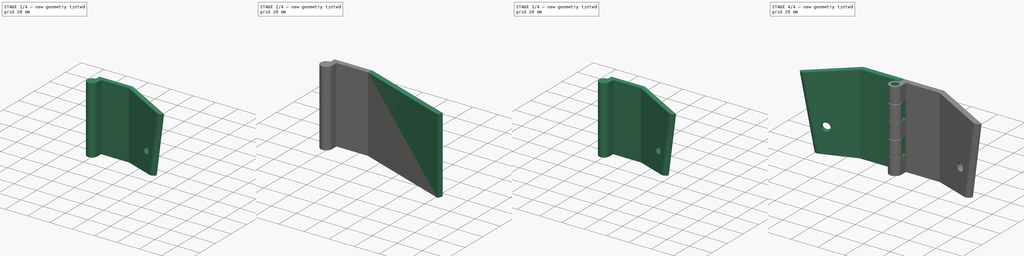
[diagram: build sequence overview — one tinted view per stage of 4, left to right]
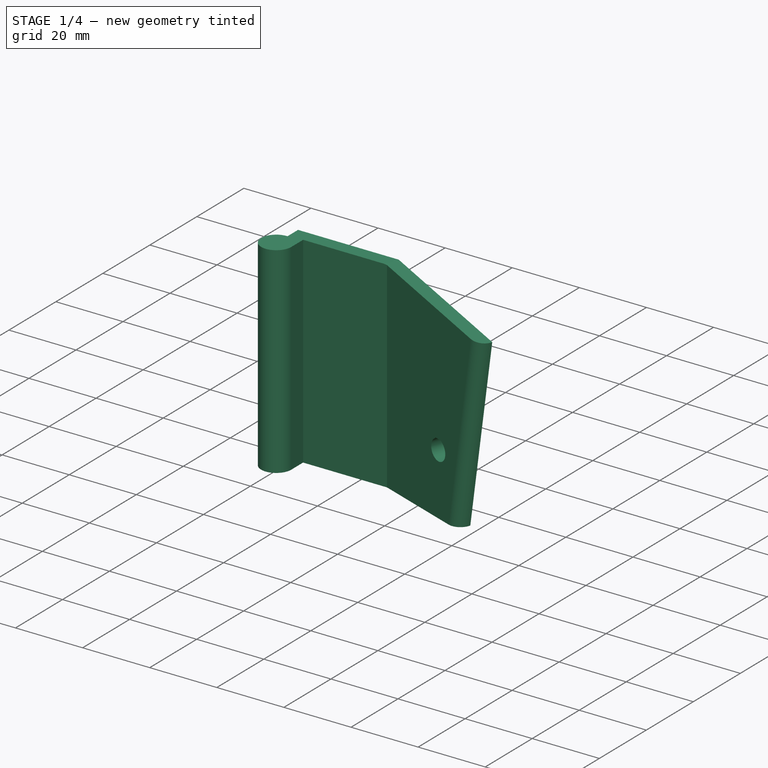
[diagram: stage 1 of 4 — iso view after this stage's code; geometry added in this stage tinted green]
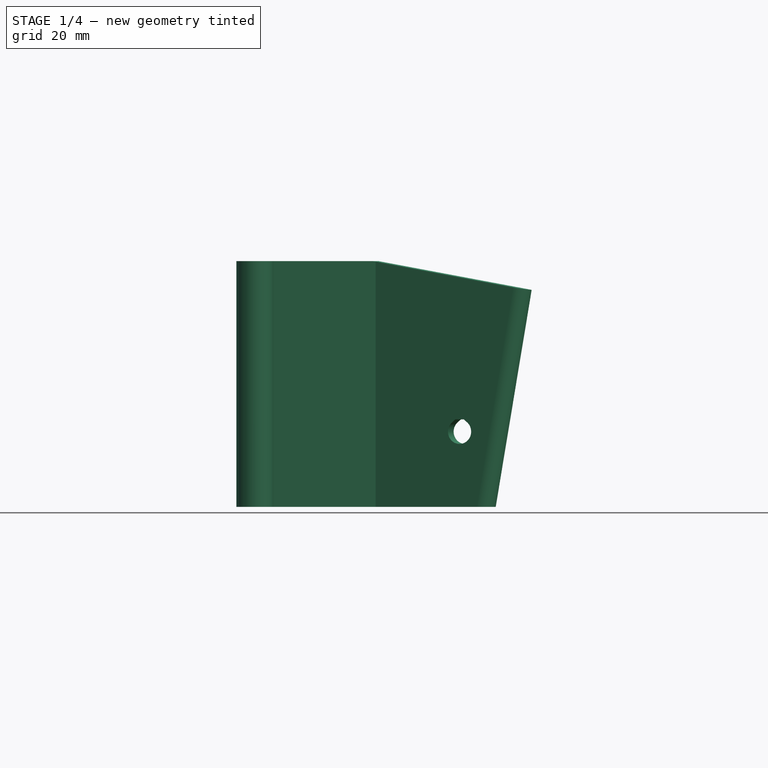
[diagram: stage 1 of 4 — front view after this stage's code; geometry added in this stage tinted green]
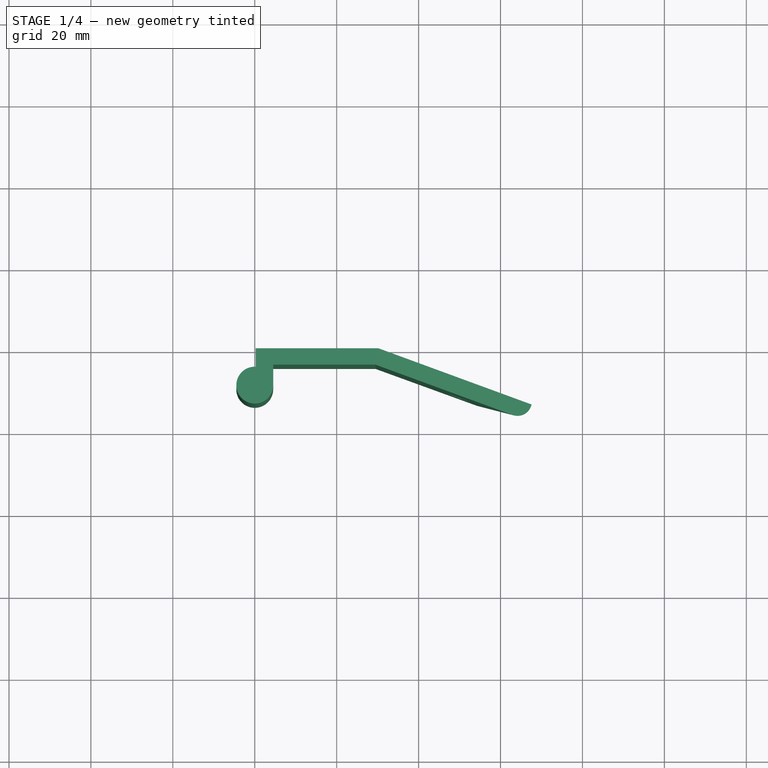
[diagram: stage 1 of 4 — top view after this stage's code; geometry added in this stage tinted green]
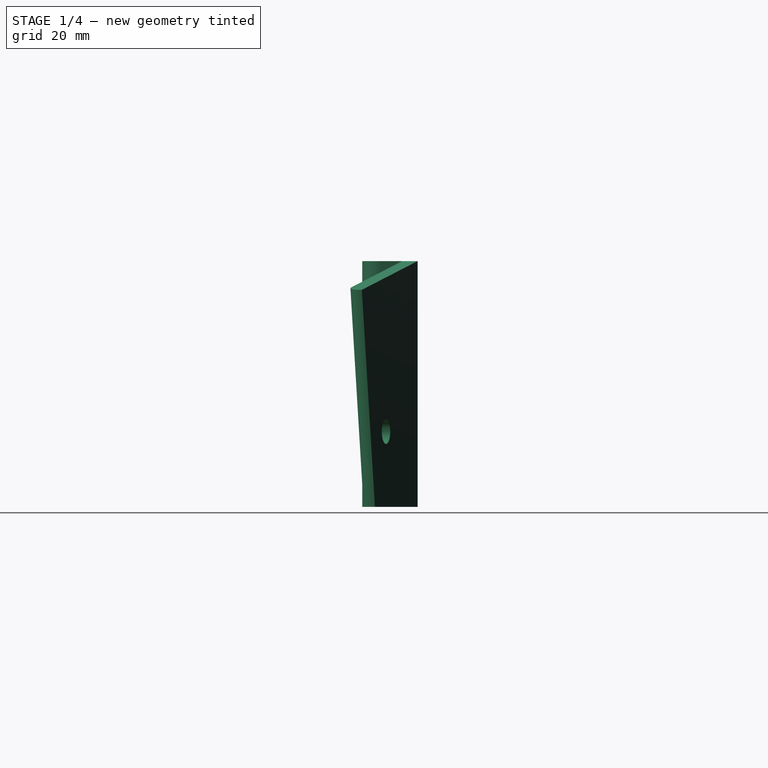
[diagram: stage 1 of 4 — right view after this stage's code; geometry added in this stage tinted green]
FCSTD DOCUMENT  (FreeCAD 0.20R29603 (Git))
Label: ergomin-hinge
License: All rights reserved
LicenseURL: http://en.wikipedia.org/wiki/All_rights_reserved
objects: Sketcher::SketchObject×11, PartDesign::Pocket×9, PartDesign::Pad×2, PartDesign::Fillet×2, PartDesign::Body×2, Part::Mirroring×1
note: 40 computed .brp shape members not serialized (recipe doc carries the construction recipe); baked Part::Feature solids carry a one-line shape summary decoded from their .brp

FEATURE [Sketcher::SketchObject] Sketch004
  FullyConstrained = true
  sketch-geometry (14):
    g0: LineSegment StartX=0.2 StartY=0 StartZ=0 EndX=30.2 EndY=0 EndZ=0
    g1: LineSegment StartX=30.2 StartY=0 StartZ=0 EndX=105.375 EndY=-27.3616 EndZ=0
    g2: LineSegment StartX=29.4947 StartY=-4 StartZ=0 EndX=4.5 EndY=-4 EndZ=0
    g3: LineSegment StartX=4.5 StartY=-4 StartZ=0 EndX=4.5 EndY=-9 EndZ=0
    g4: LineSegment StartX=4.5 StartY=-4 StartZ=0 EndX=0.2 EndY=-4 EndZ=0
    g5: ArcOfCircle CenterX=0 CenterY=-9 CenterZ=0 NormalX=0 NormalY=0 NormalZ=1 AngleXU=0 Radius=4.5 StartAngle=1.5708 EndAngle=6.28319
    g6: Circle CenterX=0 CenterY=-9 CenterZ=0 NormalX=0 NormalY=0 NormalZ=1 AngleXU=0 Radius=2.5
    g7: LineSegment StartX=4.5 StartY=-9 StartZ=0 EndX=2.5 EndY=-9 EndZ=0
    g8: LineSegment StartX=29.4947 StartY=-4 StartZ=0 EndX=104.007 EndY=-31.1204 EndZ=0
    g9: LineSegment StartX=29.4947 StartY=-4 StartZ=0 EndX=29.4947 EndY=0 EndZ=0
    g10: LineSegment StartX=29.4947 StartY=-4 StartZ=0 EndX=30.8628 EndY=-0.24123 EndZ=0
    g11: LineSegment StartX=0.2 StartY=0 StartZ=0 EndX=0.2 EndY=-4.5 EndZ=0
    g12: LineSegment StartX=0.2 StartY=-4.5 StartZ=0 EndX=0 EndY=-4.5 EndZ=0
    g13: LineSegment StartX=105.375 StartY=-27.3616 StartZ=0 EndX=104.007 EndY=-31.1204 EndZ=0
  constraints (40):
    c: PointOnObject(g0,g-1)
    c: Coincident(g1,g0)
    c: Horizontal(g2)
    c: Coincident(g2,g3)
    c: Vertical(g3)
    c: PointOnObject(g5,g-2)
    c: Angle(g0,g1) = 2.79253
    c: Distance(g1) = 80
    c: Distance(g0) = 30
    c: Coincident(g4,g2)
    c: Horizontal(g4)
    c: PointOnObject(g5,g-2)
    c: Tangent(g5,g3) = 1.5708
    c: Coincident(g6,g5)
    c: Diameter(g6) = 5  'bolt_diameter'
    c: Coincident(g7,g3)
    c: PointOnObject(g7,g6)
    c: Horizontal(g7)
    c: Distance(g7) = 2
    c: Coincident(g8,g2)
    c: Parallel(g8,g1)
    c: Coincident(g9,g2)
    c: PointOnObject(g9,g0)
    c: Vertical(g9)
    c: Coincident(g10,g2)
    c: PointOnObject(g10,g1)
    c: Perpendicular(g1,g10)
    c: Equal(g10,g9)
    c: Distance(g9) = 4
    c: Coincident(g11,g0)
    c: Vertical(g11)
    c: Coincident(g12,g11)
    c: Tangent(g12,g5) = -1.5708
    c: Horizontal(g0)
    c: Distance(g12) = 0.2
    c: PointOnObject(g4,g11)
    c: Coincident(g13,g1)
    c: Coincident(g13,g8)
    c: Perpendicular(g1,g13)
    c: Distance(g11,g4) = 0.5
FEATURE [PartDesign::Pad] Pad001
  Direction = (0,0,1)
  Length = 60
  Length2 = 10
  Profile = -> Sketch004
  ReferenceAxis = -> Sketch004 [N_Axis]
  Type = 0
FEATURE [Sketcher::SketchObject] Sketch005
  ExternalGeometry = -> [Pad001]
  FullyConstrained = true
  MapMode = 5
  Placement = pos=(3.53273,9.70609,0) rot=(0.123724,0.701674,0.701674;2.8954rad)
  Support = -> [Pad001]
  sketch-geometry (8):
    g0: LineSegment StartX=-28.3787 StartY=-3e-16 StartZ=0 EndX=-32.199 EndY=21.6658 EndZ=0
    g1: LineSegment StartX=-32.199 StartY=21.6658 StartZ=0 EndX=-50.9103 EndY=18.3665 EndZ=0
    g2: ArcOfCircle CenterX=-50.9103 CenterY=18.3665 CenterZ=0 NormalX=0 NormalY=0 NormalZ=1 AngleXU=0 Radius=3 StartAngle=2.26893 EndAngle=7.15585
    g3: LineSegment StartX=-52.8387 StartY=20.6646 StartZ=0 EndX=-52.0022 EndY=21.3665 EndZ=0
    g4: LineSegment StartX=-52.0022 StartY=21.3665 StartZ=0 EndX=-49.8184 EndY=21.3665 EndZ=0
    g5: LineSegment StartX=-49.8184 StartY=21.3665 StartZ=0 EndX=-48.982 EndY=20.6646 EndZ=0
    g6: LineSegment StartX=-50.9103 StartY=21.3665 StartZ=0 EndX=-50.9103 EndY=18.3665 EndZ=0
    g7: LineSegment StartX=-48.982 StartY=20.6646 StartZ=0 EndX=-50.9103 EndY=18.3665 EndZ=0
  constraints (21):
    c: Coincident(g0,g-3)
    c: Coincident(g1,g0)
    c: Coincident(g2,g1)
    c: Coincident(g4,g3)
    c: Horizontal(g4)
    c: Coincident(g5,g4)
    c: Tangent(g5,g2) = 1.5708
    c: Tangent(g3,g2) = 1.5708
    c: PointOnObject(g6,g4)
    c: Coincident(g6,g2)
    c: Vertical(g6)
    c: Coincident(g7,g2)
    c: Coincident(g7,g2)
    c: Equal(g7,g6)
    c: Equal(g5,g3)
    c: Radius(g2) = 3
    c: Perpendicular(g1,g0)
    c: Angle(g-3,g0) = 0.174533
    c: Distance(g0) = 22
    c: Distance(g1) = 19
    c: Angle(g4,g5) = 2.44346
FEATURE [PartDesign::Pocket] Pocket003
  BaseFeature = -> Pad001
  Direction = (-0.34202,-0.939693,1e-16)
  Length = 5
  Length2 = 5
  Profile = -> Sketch005
  ReferenceAxis = -> Sketch005 [N_Axis]
  Type = 1
FEATURE [Sketcher::SketchObject] Sketch006
  ExternalGeometry = -> [Pocket003]
  FullyConstrained = true
  MapMode = 5
  Placement = pos=(3.53273,9.70609,0) rot=(0.123724,0.701674,0.701674;2.8954rad)
  Support = -> [Pocket003]
  sketch-geometry (6):
    g0: LineSegment StartX=-28.3787 StartY=60 StartZ=0 EndX=-68.1836 EndY=52.9813 EndZ=0
    g1: LineSegment StartX=-68.1836 StartY=52.9813 StartZ=0 EndX=-58.8415 EndY=0 EndZ=0
    g2: LineSegment StartX=-58.8415 StartY=0 StartZ=0 EndX=-108.379 EndY=-1.3e-15 EndZ=0
    g3: LineSegment StartX=-108.379 StartY=-1.3e-15 StartZ=0 EndX=-108.379 EndY=60 EndZ=0
    g4: LineSegment StartX=-108.379 StartY=60 StartZ=0 EndX=-28.3787 EndY=60 EndZ=0
    g5: LineSegment StartX=-28.3787 StartY=-3e-16 StartZ=0 EndX=-38.6393 EndY=58.1908 EndZ=0
  constraints (15):
    c: Coincident(g-3,g0)
    c: Coincident(g0,g1)
    c: PointOnObject(g1,g-1)
    c: Coincident(g1,g2)
    c: Coincident(g2,g-4)
    c: Coincident(g2,g3)
    c: Coincident(g3,g-4)
    c: Coincident(g3,g4)
    c: Coincident(g4,g0)
    c: Perpendicular(g0,g1)
    c: Coincident(g5,g-3)
    c: PointOnObject(g5,g0)
    c: Perpendicular(g0,g5)
    c: Distance(g5,g0) = 30
    c: Angle(g4,g0) = 0.174533
FEATURE [PartDesign::Pocket] Pocket004
  BaseFeature = -> Pocket003
  Direction = (-0.34202,-0.939693,1e-16)
  Length = 5
  Length2 = 5
  Profile = -> Sketch006
  ReferenceAxis = -> Sketch006 [N_Axis]
  Type = 1
FEATURE [PartDesign::Fillet] Fillet001
  Base = -> Pocket004 [Edge28]
  BaseFeature = -> Pocket004
  Radius = 3.5
  SupportTransform = false
  UseAllEdges = false
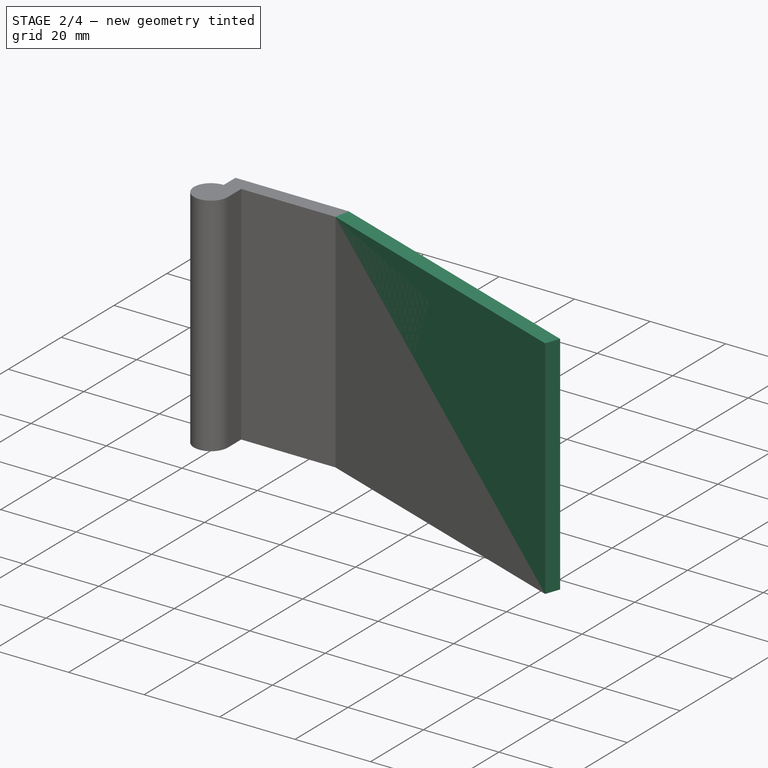
[diagram: stage 2 of 4 — iso view after this stage's code; geometry added in this stage tinted green]
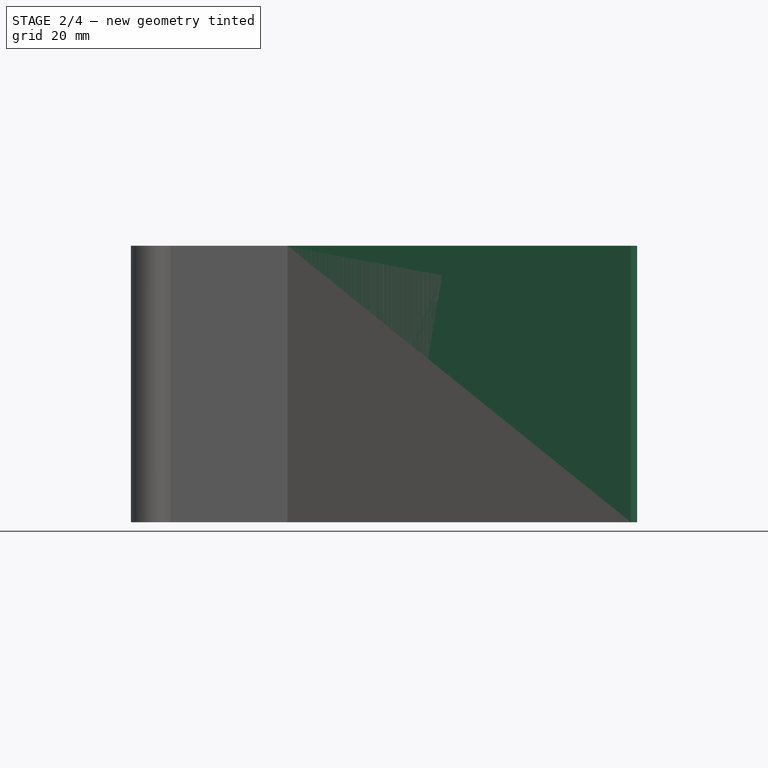
[diagram: stage 2 of 4 — front view after this stage's code; geometry added in this stage tinted green]
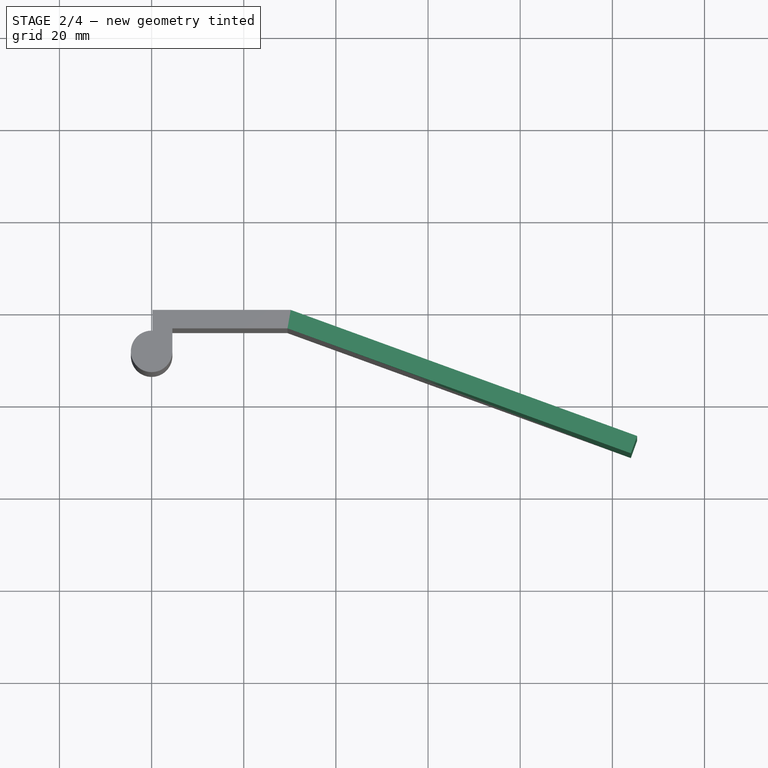
[diagram: stage 2 of 4 — top view after this stage's code; geometry added in this stage tinted green]
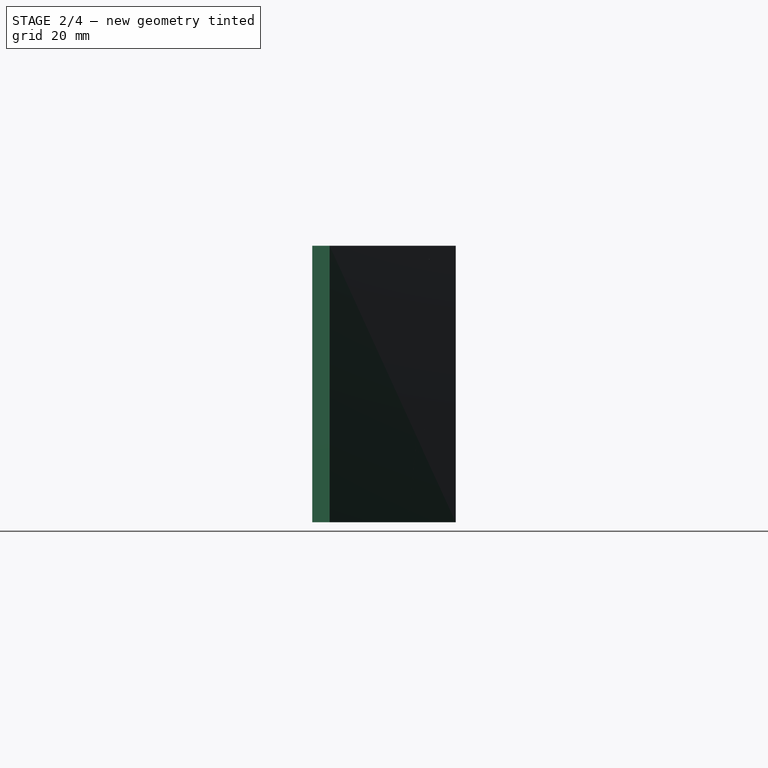
[diagram: stage 2 of 4 — right view after this stage's code; geometry added in this stage tinted green]
FEATURE [Sketcher::SketchObject] Sketch
  FullyConstrained = true
  sketch-geometry (14):
    g0: LineSegment StartX=0.2 StartY=0 StartZ=0 EndX=30.2 EndY=0 EndZ=0
    g1: LineSegment StartX=30.2 StartY=0 StartZ=0 EndX=105.375 EndY=-27.3616 EndZ=0
    g2: LineSegment StartX=29.4947 StartY=-4 StartZ=0 EndX=4.5 EndY=-4 EndZ=0
    g3: LineSegment StartX=4.5 StartY=-4 StartZ=0 EndX=4.5 EndY=-9 EndZ=0
    g4: LineSegment StartX=4.5 StartY=-4 StartZ=0 EndX=0.2 EndY=-4 EndZ=0
    g5: ArcOfCircle CenterX=0 CenterY=-9 CenterZ=0 NormalX=0 NormalY=0 NormalZ=1 AngleXU=0 Radius=4.5 StartAngle=1.5708 EndAngle=6.28319
    g6: Circle CenterX=0 CenterY=-9 CenterZ=0 NormalX=0 NormalY=0 NormalZ=1 AngleXU=0 Radius=2.5
    g7: LineSegment StartX=4.5 StartY=-9 StartZ=0 EndX=2.5 EndY=-9 EndZ=0
    g8: LineSegment StartX=29.4947 StartY=-4 StartZ=0 EndX=104.007 EndY=-31.1204 EndZ=0
    g9: LineSegment StartX=29.4947 StartY=-4 StartZ=0 EndX=29.4947 EndY=0 EndZ=0
    g10: LineSegment StartX=29.4947 StartY=-4 StartZ=0 EndX=30.8628 EndY=-0.24123 EndZ=0
    g11: LineSegment StartX=0.2 StartY=0 StartZ=0 EndX=0.2 EndY=-4.5 EndZ=0
    g12: LineSegment StartX=0.2 StartY=-4.5 StartZ=0 EndX=0 EndY=-4.5 EndZ=0
    g13: LineSegment StartX=105.375 StartY=-27.3616 StartZ=0 EndX=104.007 EndY=-31.1204 EndZ=0
  constraints (40):
    c: PointOnObject(g0,g-1)
    c: Coincident(g1,g0)
    c: Horizontal(g2)
    c: Coincident(g2,g3)
    c: Vertical(g3)
    c: PointOnObject(g5,g-2)
    c: Angle(g0,g1) = 2.79253
    c: Distance(g1) = 80
    c: Distance(g0) = 30
    c: Coincident(g4,g2)
    c: Horizontal(g4)
    c: PointOnObject(g5,g-2)
    c: Tangent(g5,g3) = 1.5708
    c: Coincident(g6,g5)
    c: Diameter(g6) = 5  'bolt_diameter'
    c: Coincident(g7,g3)
    c: PointOnObject(g7,g6)
    c: Horizontal(g7)
    c: Distance(g7) = 2
    c: Coincident(g8,g2)
    c: Parallel(g8,g1)
    c: Coincident(g9,g2)
    c: PointOnObject(g9,g0)
    c: Vertical(g9)
    c: Coincident(g10,g2)
    c: PointOnObject(g10,g1)
    c: Perpendicular(g1,g10)
    c: Equal(g10,g9)
    c: Distance(g9) = 4
    c: Coincident(g11,g0)
    c: Vertical(g11)
    c: Coincident(g12,g11)
    c: Tangent(g12,g5) = -1.5708
    c: Horizontal(g0)
    c: Distance(g12) = 0.2
    c: PointOnObject(g4,g11)
    c: Coincident(g13,g1)
    c: Coincident(g13,g8)
    c: Perpendicular(g1,g13)
    c: Distance(g11,g4) = 0.5
FEATURE [PartDesign::Pad] Pad
  Direction = (0,0,1)
  Length = 60
  Length2 = 10
  Profile = -> Sketch
  ReferenceAxis = -> Sketch [N_Axis]
  Type = 0
FEATURE [Sketcher::SketchObject] Sketch007
  ExternalGeometry = -> [Fillet001]
  FullyConstrained = true
  MapMode = 5
  Placement = pos=(0,0,60) rot=(0,0,1;0rad)
  Support = -> [Fillet001]
  sketch-geometry (1):
    g0: Circle CenterX=0 CenterY=-9 CenterZ=0 NormalX=0 NormalY=0 NormalZ=1 AngleXU=0 Radius=2.5
  constraints (2):
    c: Coincident(g0,g-3)
    c: Diameter(g0) = 5
FEATURE [PartDesign::Pocket] Pocket005
  BaseFeature = -> Fillet001
  Direction = (0,0,-1)
  Length = 5
  Length2 = 5
  Profile = -> Sketch007
  ReferenceAxis = -> Sketch007 [N_Axis]
  Type = 1
FEATURE [PartDesign::Body] Body
  Group = -> [Sketch,Pad,Sketch001,Pocket,Sketch002,Pocket001,Fillet,Sketch003,Pocket002,Sketch008,Pocket006,Sketch009,Pocket007]
  Origin = -> Origin
  Tip = -> Pocket007
FEATURE [Sketcher::SketchObject] Sketch010
  ExternalGeometry = -> [Pocket005]
  FullyConstrained = false
  MapMode = 5
  Placement = pos=(4.5,0,0) rot=(0.57735,0.57735,0.57735;2.0944rad)
  Support = -> [Pocket005]
  sketch-geometry (22):
    g0: LineSegment StartX=-4 StartY=60 StartZ=0 EndX=-34 EndY=60 EndZ=0
    g1: LineSegment StartX=-34 StartY=60 StartZ=0 EndX=-34 EndY=0 EndZ=0
    g2: LineSegment StartX=-34 StartY=0 StartZ=0 EndX=-4 EndY=0 EndZ=0
    g3: LineSegment StartX=-4 StartY=0 StartZ=0 EndX=-4 EndY=12.2 EndZ=0
    g4: LineSegment StartX=-4 StartY=12.2 StartZ=0 EndX=-29 EndY=12.2 EndZ=0
    g5: LineSegment StartX=-29 StartY=12.2 StartZ=0 EndX=-29 EndY=23.8 EndZ=0
    g6: LineSegment StartX=-29 StartY=23.8 StartZ=0 EndX=-4 EndY=23.8 EndZ=0
    g7: LineSegment StartX=-4 StartY=23.8 StartZ=0 EndX=-4 EndY=36.2 EndZ=0
    g8: LineSegment StartX=-4 StartY=36.2 StartZ=0 EndX=-29 EndY=36.2 EndZ=0
    g9: LineSegment StartX=-29 StartY=36.2 StartZ=0 EndX=-29 EndY=47.8 EndZ=0
    g10: LineSegment StartX=-29 StartY=47.8 StartZ=0 EndX=-4 EndY=47.8 EndZ=0
    g11: LineSegment StartX=-4 StartY=47.8 StartZ=0 EndX=-4 EndY=60 EndZ=0
    g12: LineSegment StartX=-9 StartY=0 StartZ=0 EndX=-9 EndY=12 EndZ=0
    g13: LineSegment StartX=-9 StartY=12 StartZ=0 EndX=-9 EndY=24 EndZ=0
    g14: LineSegment StartX=-9 StartY=24 StartZ=0 EndX=-9 EndY=36 EndZ=0
    g15: LineSegment StartX=-9 StartY=36 StartZ=0 EndX=-9 EndY=48 EndZ=0
    g16: LineSegment StartX=-9 StartY=48 StartZ=0 EndX=-9 EndY=60 EndZ=0
    g17: LineSegment StartX=-9 StartY=48 StartZ=0 EndX=-4 EndY=47.8 EndZ=0
    g18: LineSegment StartX=-9 StartY=36 StartZ=0 EndX=-4 EndY=36.2 EndZ=0
    g19: LineSegment StartX=-9 StartY=24 StartZ=0 EndX=-4 EndY=23.8 EndZ=0
    g20: LineSegment StartX=-9 StartY=12 StartZ=0 EndX=-4 EndY=12.2 EndZ=0
    g21: LineSegment StartX=-29 StartY=36.2 StartZ=0 EndX=-29 EndY=23.8 EndZ=0
  constraints (58):
    c: Coincident(g-3,g0)
    c: Horizontal(g0)
    c: Coincident(g0,g1)
    c: PointOnObject(g1,g-1)
    c: Vertical(g1)
    c: Coincident(g1,g2)
    c: Coincident(g2,g-3)
    c: Coincident(g2,g3)
    c: PointOnObject(g3,g-3)
    c: Coincident(g3,g4)
    c: Horizontal(g4)
    c: Coincident(g4,g5)
    c: Vertical(g5)
    c: Coincident(g5,g6)
    c: PointOnObject(g6,g-3)
    c: Horizontal(g6)
    c: Coincident(g6,g7)
    c: PointOnObject(g7,g-3)
    c: Coincident(g7,g8)
    c: Horizontal(g8)
    c: Coincident(g8,g9)
    c: Vertical(g9)
    c: Coincident(g9,g10)
    c: PointOnObject(g10,g-3)
    c: Horizontal(g10)
    c: Coincident(g10,g11)
    c: Coincident(g11,g0)
    c: Distance(g0) = 30
    c: Distance(g9,g1) = 5
    c: Coincident(g-4,g12)
    c: PointOnObject(g12,g-4)
    c: Coincident(g12,g13)
    c: PointOnObject(g13,g-4)
    c: Coincident(g13,g14)
    c: PointOnObject(g14,g-4)
    c: Coincident(g14,g15)
    c: PointOnObject(g15,g-4)
    c: Coincident(g15,g16)
    c: Coincident(g16,g-4)
    c: Equal(g12,g13)
    c: Equal(g13,g14)
    c: Equal(g14,g15)
    c: Equal(g15,g16)
    c: Coincident(g17,g15)
    c: Coincident(g17,g10)
    c: Coincident(g18,g14)
    c: Coincident(g18,g7)
    c: Coincident(g19,g13)
    c: Coincident(g19,g6)
    c: Coincident(g20,g12)
    c: Coincident(g20,g3)
    c: Equal(g17,g18)
    c: Equal(g18,g19)
    c: Equal(g19,g20)
    c: Coincident(g21,g8)
    c: Coincident(g21,g5)
    c: Vertical(g21)
    c: Distance(g15,g10) = 0.2
FEATURE [PartDesign::Pocket] Pocket008
  BaseFeature = -> Pocket005
  Direction = (-1,0,0)
  Length = 5
  Length2 = 5
  Profile = -> Sketch010
  ReferenceAxis = -> Sketch010 [N_Axis]
  Type = 1
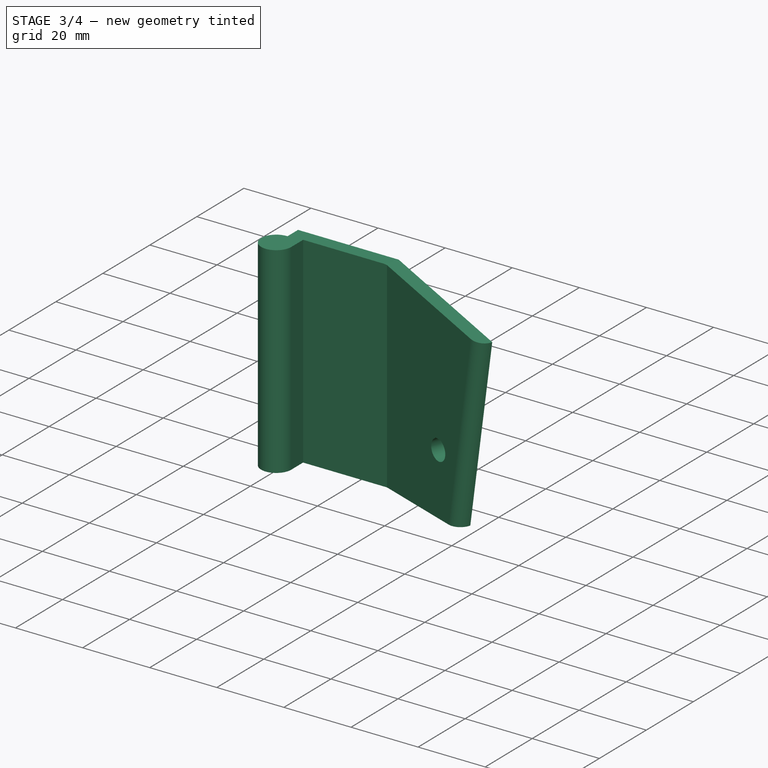
[diagram: stage 3 of 4 — iso view after this stage's code; geometry added in this stage tinted green]
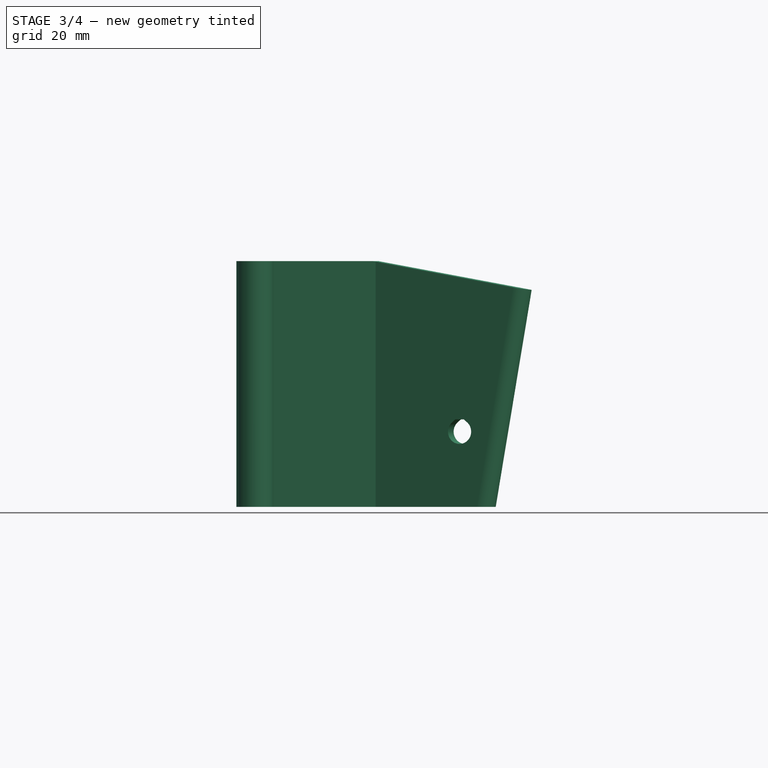
[diagram: stage 3 of 4 — front view after this stage's code; geometry added in this stage tinted green]
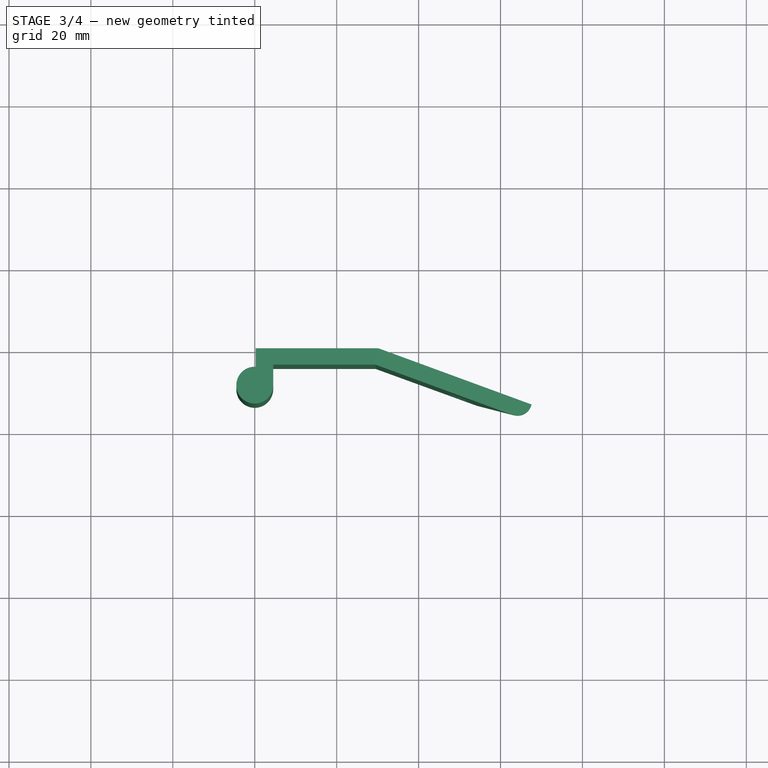
[diagram: stage 3 of 4 — top view after this stage's code; geometry added in this stage tinted green]
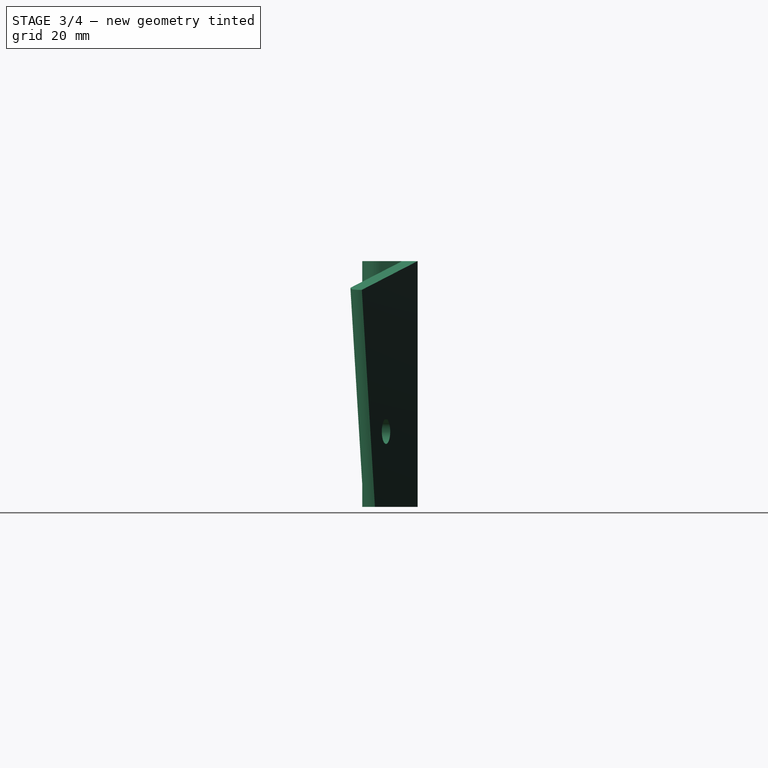
[diagram: stage 3 of 4 — right view after this stage's code; geometry added in this stage tinted green]
FEATURE [Sketcher::SketchObject] Sketch001
  ExternalGeometry = -> [Pad]
  FullyConstrained = true
  MapMode = 5
  Placement = pos=(3.53273,9.70609,0) rot=(0.123724,0.701674,0.701674;2.8954rad)
  Support = -> [Pad]
  sketch-geometry (8):
    g0: LineSegment StartX=-28.3787 StartY=-3e-16 StartZ=0 EndX=-32.199 EndY=21.6658 EndZ=0
    g1: LineSegment StartX=-32.199 StartY=21.6658 StartZ=0 EndX=-50.9103 EndY=18.3665 EndZ=0
    g2: ArcOfCircle CenterX=-50.9103 CenterY=18.3665 CenterZ=0 NormalX=0 NormalY=0 NormalZ=1 AngleXU=0 Radius=3 StartAngle=2.26893 EndAngle=7.15585
    g3: LineSegment StartX=-52.8387 StartY=20.6646 StartZ=0 EndX=-52.0022 EndY=21.3665 EndZ=0
    g4: LineSegment StartX=-52.0022 StartY=21.3665 StartZ=0 EndX=-49.8184 EndY=21.3665 EndZ=0
    g5: LineSegment StartX=-49.8184 StartY=21.3665 StartZ=0 EndX=-48.982 EndY=20.6646 EndZ=0
    g6: LineSegment StartX=-50.9103 StartY=21.3665 StartZ=0 EndX=-50.9103 EndY=18.3665 EndZ=0
    g7: LineSegment StartX=-48.982 StartY=20.6646 StartZ=0 EndX=-50.9103 EndY=18.3665 EndZ=0
  constraints (21):
    c: Coincident(g0,g-3)
    c: Coincident(g1,g0)
    c: Coincident(g2,g1)
    c: Coincident(g4,g3)
    c: Horizontal(g4)
    c: Coincident(g5,g4)
    c: Tangent(g5,g2) = 1.5708
    c: Tangent(g3,g2) = 1.5708
    c: PointOnObject(g6,g4)
    c: Coincident(g6,g2)
    c: Vertical(g6)
    c: Coincident(g7,g2)
    c: Coincident(g7,g2)
    c: Equal(g7,g6)
    c: Equal(g5,g3)
    c: Radius(g2) = 3
    c: Perpendicular(g1,g0)
    c: Angle(g-3,g0) = 0.174533
    c: Distance(g0) = 22
    c: Distance(g1) = 19
    c: Angle(g4,g5) = 2.44346
FEATURE [PartDesign::Pocket] Pocket
  BaseFeature = -> Pad
  Direction = (-0.34202,-0.939693,2e-16)
  Length = 5
  Length2 = 5
  Profile = -> Sketch001
  ReferenceAxis = -> Sketch001 [N_Axis]
  Type = 1
FEATURE [Sketcher::SketchObject] Sketch002
  ExternalGeometry = -> [Pocket]
  FullyConstrained = true
  MapMode = 5
  Placement = pos=(3.53273,9.70609,0) rot=(0.123724,0.701674,0.701674;2.8954rad)
  Support = -> [Pocket]
  sketch-geometry (6):
    g0: LineSegment StartX=-28.3787 StartY=60 StartZ=0 EndX=-68.1836 EndY=52.9813 EndZ=0
    g1: LineSegment StartX=-68.1836 StartY=52.9813 StartZ=0 EndX=-58.8415 EndY=0 EndZ=0
    g2: LineSegment StartX=-58.8415 StartY=0 StartZ=0 EndX=-108.379 EndY=-1.3e-15 EndZ=0
    g3: LineSegment StartX=-108.379 StartY=-1.3e-15 StartZ=0 EndX=-108.379 EndY=60 EndZ=0
    g4: LineSegment StartX=-108.379 StartY=60 StartZ=0 EndX=-28.3787 EndY=60 EndZ=0
    g5: LineSegment StartX=-28.3787 StartY=-3e-16 StartZ=0 EndX=-38.6393 EndY=58.1908 EndZ=0
  constraints (15):
    c: Coincident(g-3,g0)
    c: Coincident(g0,g1)
    c: PointOnObject(g1,g-1)
    c: Coincident(g1,g2)
    c: Coincident(g2,g-4)
    c: Coincident(g2,g3)
    c: Coincident(g3,g-4)
    c: Coincident(g3,g4)
    c: Coincident(g4,g0)
    c: Perpendicular(g0,g1)
    c: Coincident(g5,g-3)
    c: PointOnObject(g5,g0)
    c: Perpendicular(g0,g5)
    c: Distance(g5,g0) = 30
    c: Angle(g4,g0) = 0.174533
FEATURE [PartDesign::Pocket] Pocket001
  BaseFeature = -> Pocket
  Direction = (-0.34202,-0.939693,2e-16)
  Length = 5
  Length2 = 5
  Profile = -> Sketch002
  ReferenceAxis = -> Sketch002 [N_Axis]
  Type = 1
FEATURE [PartDesign::Fillet] Fillet
  Base = -> Pocket001 [Edge28]
  BaseFeature = -> Pocket001
  Radius = 3.5
  SupportTransform = false
  UseAllEdges = false
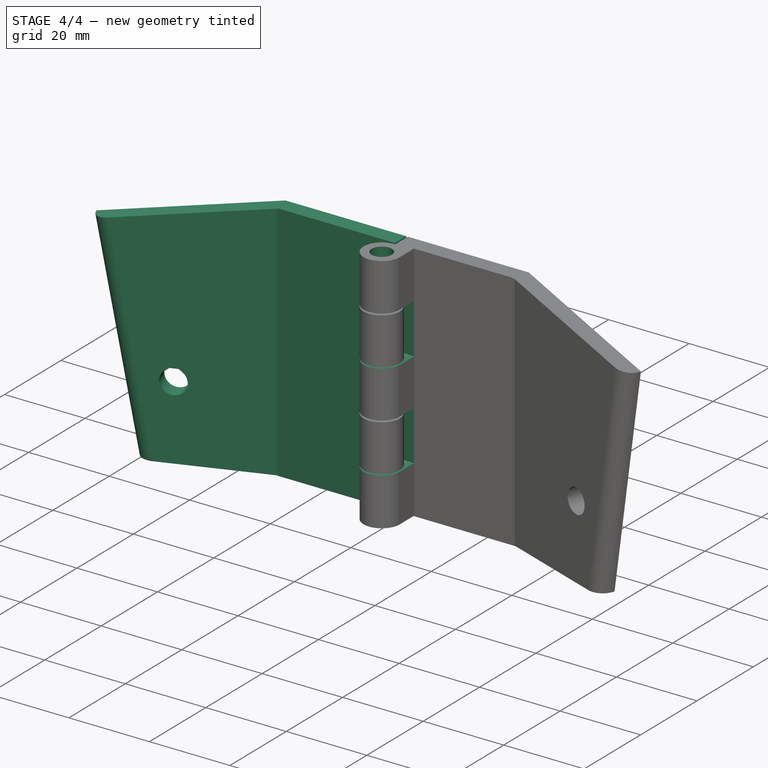
[diagram: stage 4 of 4 — iso view after this stage's code; geometry added in this stage tinted green]
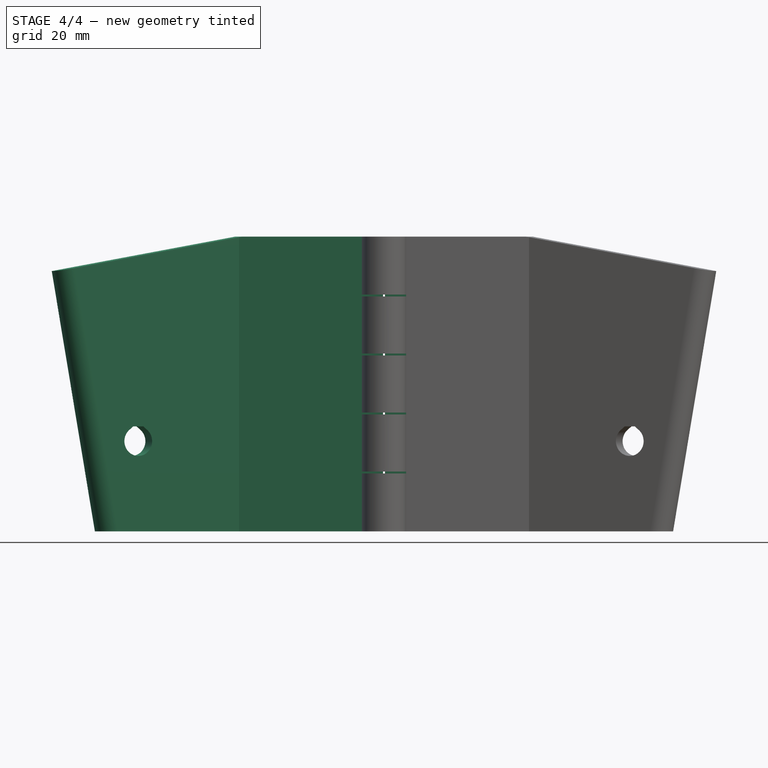
[diagram: stage 4 of 4 — front view after this stage's code; geometry added in this stage tinted green]
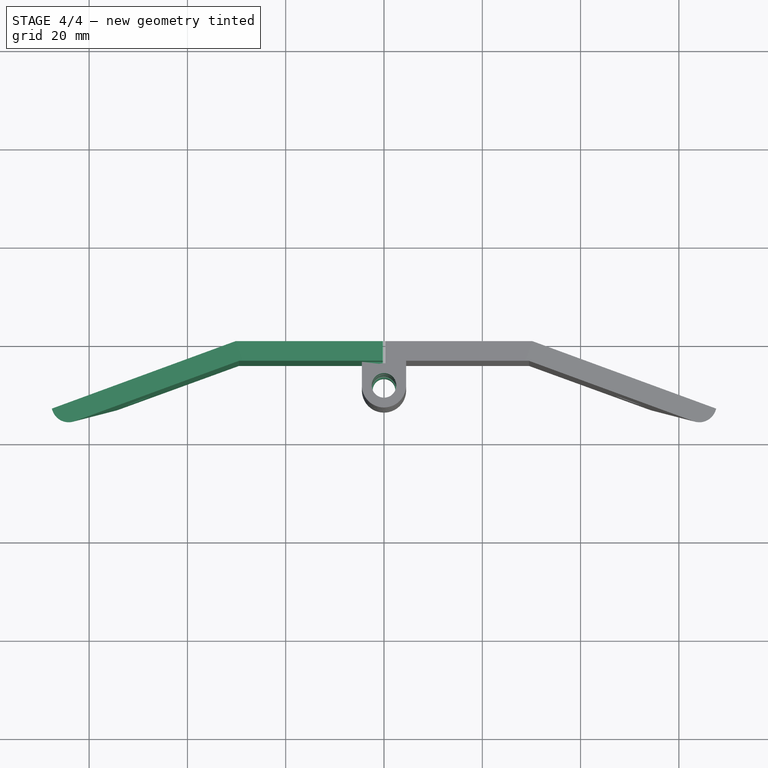
[diagram: stage 4 of 4 — top view after this stage's code; geometry added in this stage tinted green]
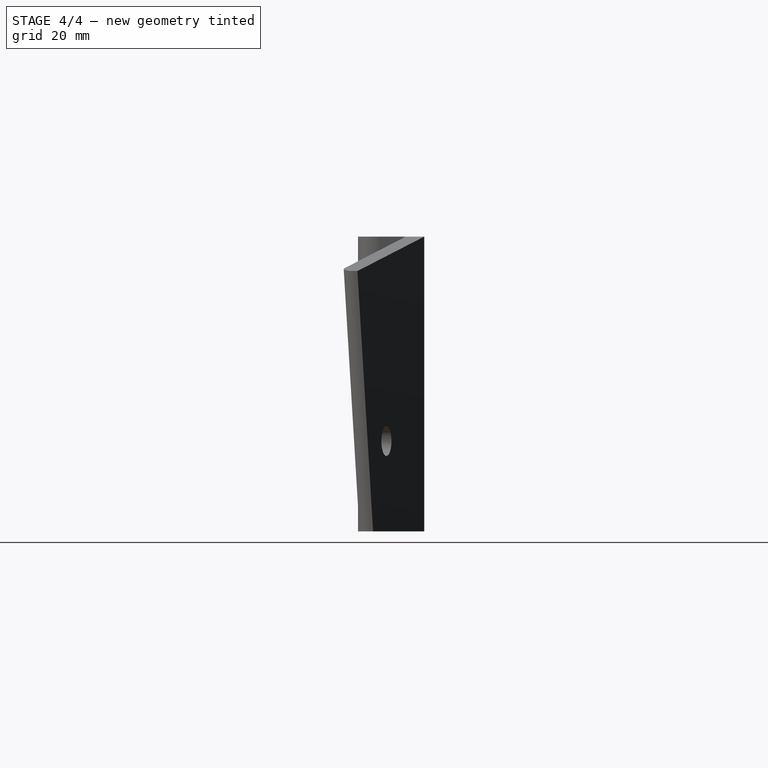
[diagram: stage 4 of 4 — right view after this stage's code; geometry added in this stage tinted green]
FEATURE [Sketcher::SketchObject] Sketch003
  ExternalGeometry = -> [Fillet]
  FullyConstrained = true
  MapMode = 5
  Placement = pos=(0,0,60) rot=(0,0,1;0rad)
  Support = -> [Fillet]
  sketch-geometry (1):
    g0: Circle CenterX=0 CenterY=-9 CenterZ=0 NormalX=0 NormalY=0 NormalZ=1 AngleXU=0 Radius=2.3
  constraints (2):
    c: Coincident(g0,g-3)
    c: Diameter(g0) = 4.6
FEATURE [PartDesign::Pocket] Pocket002
  BaseFeature = -> Fillet
  Direction = (0,0,-1)
  Length = 5
  Length2 = 5
  Profile = -> Sketch003
  ReferenceAxis = -> Sketch003 [N_Axis]
  Type = 1
FEATURE [Sketcher::SketchObject] Sketch008
  ExternalGeometry = -> [Pocket002]
  FullyConstrained = true
  MapMode = 5
  Placement = pos=(4.5,0,0) rot=(0.57735,0.57735,0.57735;2.0944rad)
  Support = -> [Pocket002]
  sketch-geometry (18):
    g0: LineSegment StartX=-34 StartY=48.2 StartZ=0 EndX=-4 EndY=48.2 EndZ=0
    g1: LineSegment StartX=-4 StartY=48.2 StartZ=0 EndX=-4 EndY=35.8 EndZ=0
    g2: LineSegment StartX=-4 StartY=35.8 StartZ=0 EndX=-29 EndY=35.8 EndZ=0
    g3: LineSegment StartX=-4 StartY=11.8 StartZ=0 EndX=-34 EndY=11.8 EndZ=0
    g4: LineSegment StartX=-29 StartY=24.2 StartZ=0 EndX=-4 EndY=24.2 EndZ=0
    g5: LineSegment StartX=-4 StartY=24.2 StartZ=0 EndX=-4 EndY=11.8 EndZ=0
    g6: LineSegment StartX=-4 StartY=11.8 StartZ=0 EndX=-4 EndY=0 EndZ=0
    g7: LineSegment StartX=-34 StartY=48.2 StartZ=0 EndX=-34 EndY=11.8 EndZ=0
    g8: LineSegment StartX=-9 StartY=60 StartZ=0 EndX=-9 EndY=48 EndZ=0
    g9: LineSegment StartX=-9 StartY=48 StartZ=0 EndX=-9 EndY=36 EndZ=0
    g10: LineSegment StartX=-9 StartY=36 StartZ=0 EndX=-9 EndY=24 EndZ=0
    g11: LineSegment StartX=-9 StartY=24 StartZ=0 EndX=-9 EndY=12 EndZ=0
    g12: LineSegment StartX=-9 StartY=12 StartZ=0 EndX=-9 EndY=0 EndZ=0
    g13: LineSegment StartX=-29 StartY=24.2 StartZ=0 EndX=-29 EndY=35.8 EndZ=0
    g14: LineSegment StartX=-9 StartY=48 StartZ=0 EndX=-4 EndY=48.2 EndZ=0
    g15: LineSegment StartX=-9 StartY=36 StartZ=0 EndX=-4 EndY=35.8 EndZ=0
    g16: LineSegment StartX=-9 StartY=24 StartZ=0 EndX=-4 EndY=24.2 EndZ=0
    g17: LineSegment StartX=-9 StartY=12 StartZ=0 EndX=-4 EndY=11.8 EndZ=0
  constraints (48):
    c: Horizontal(g0)
    c: Coincident(g0,g1)
    c: Coincident(g1,g2)
    c: Horizontal(g2)
    c: Horizontal(g4)
    c: Coincident(g4,g5)
    c: Coincident(g5,g3)
    c: Vertical(g5)
    c: Horizontal(g3)
    c: Vertical(g1)
    c: Equal(g5,g1)
    c: Coincident(g6,g3)
    c: Vertical(g6)
    c: Coincident(g7,g0)
    c: Coincident(g7,g3)
    c: Vertical(g7)
    c: Coincident(g-3,g6)
    c: Coincident(g-4,g8)
    c: Vertical(g8)
    c: Coincident(g8,g9)
    c: Vertical(g9)
    c: Coincident(g9,g10)
    c: Vertical(g10)
    c: Coincident(g10,g11)
    c: Vertical(g11)
    c: Coincident(g11,g12)
    c: Coincident(g12,g-3)
    c: Equal(g12,g11)
    c: Equal(g11,g10)
    c: Equal(g10,g9)
    c: Equal(g9,g8)
    c: Coincident(g13,g4)
    c: Coincident(g13,g2)
    c: Vertical(g13)
    c: Distance(g8,g0) = 0.2
    c: Coincident(g14,g8)
    c: Coincident(g14,g0)
    c: Coincident(g15,g9)
    c: Coincident(g15,g1)
    c: Coincident(g16,g10)
    c: Coincident(g16,g4)
    c: Coincident(g17,g11)
    c: Coincident(g17,g3)
    c: Equal(g17,g16)
    c: Equal(g16,g15)
    c: Equal(g15,g14)
    c: Distance(g0) = 30
    c: Distance(g2,g7) = 5
FEATURE [PartDesign::Pocket] Pocket006
  BaseFeature = -> Pocket002
  Direction = (-1,0,0)
  Length = 5
  Length2 = 5
  Profile = -> Sketch008
  ReferenceAxis = -> Sketch008 [N_Axis]
  Type = 1
FEATURE [Sketcher::SketchObject] Sketch009
  ExternalGeometry = -> [Pocket006]
  FullyConstrained = true
  MapMode = 5
  Placement = pos=(0,0,60) rot=(0,0,1;0rad)
  Support = -> [Pocket006]
  sketch-geometry (1):
    g0: Circle CenterX=0 CenterY=-9 CenterZ=0 NormalX=0 NormalY=0 NormalZ=1 AngleXU=0 Radius=2.5
  constraints (2):
    c: Coincident(g0,g-3)
    c: Diameter(g0) = 5
FEATURE [PartDesign::Pocket] Pocket007
  BaseFeature = -> Pocket006
  Direction = (0,0,-1)
  Length = 0
  Length2 = 5
  Profile = -> Sketch009
  ReferenceAxis = -> Sketch009 [N_Axis]
  Type = 3
  UpToFace = -> Pocket006 [Face24]
FEATURE [PartDesign::Body] Body001
  Group = -> [Sketch004,Pad001,Sketch005,Pocket003,Sketch006,Pocket004,Fillet001,Sketch007,Pocket005,Sketch010,Pocket008]
  Origin = -> Origin001
  Tip = -> Pocket008
FEATURE [Part::Mirroring] Part__Mirroring  label="Body001 (Mirror #1)"
  Base = (0,0,0)
  Normal = (1,0,0)
  Source = -> Body001
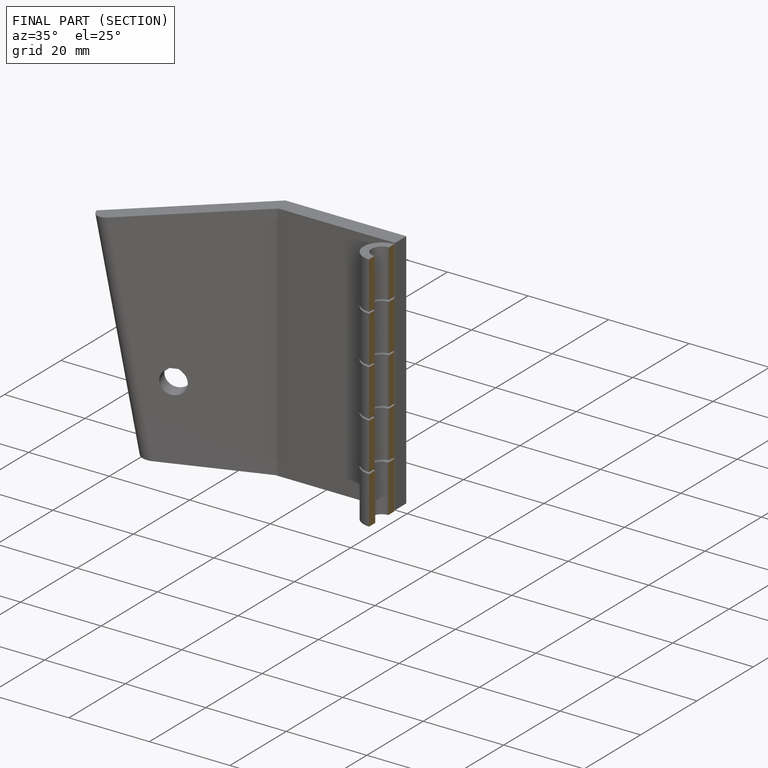
[diagram: finished part — half-section view (interior)]
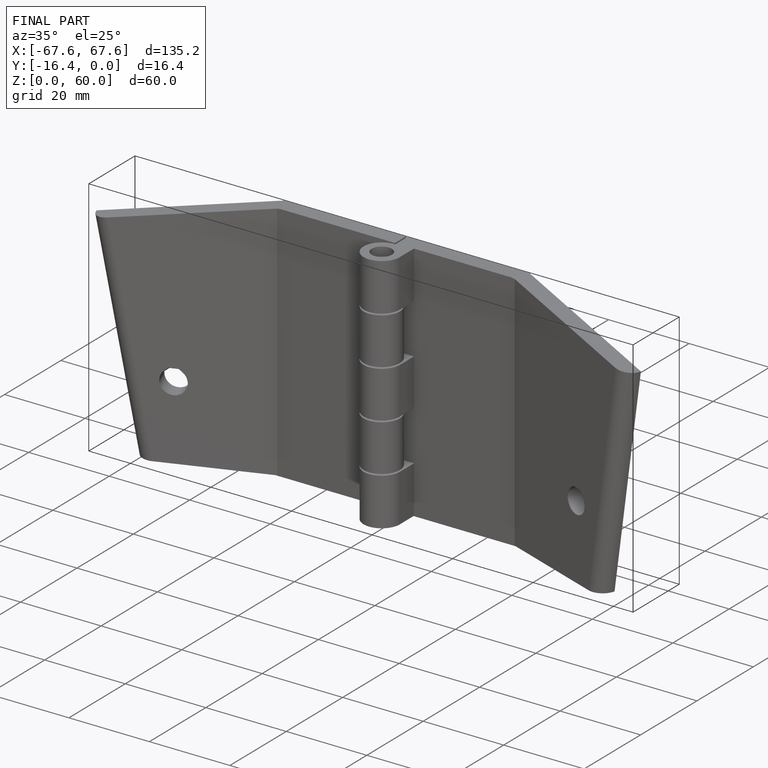
[diagram: finished part — iso view with bounding-box wireframe]
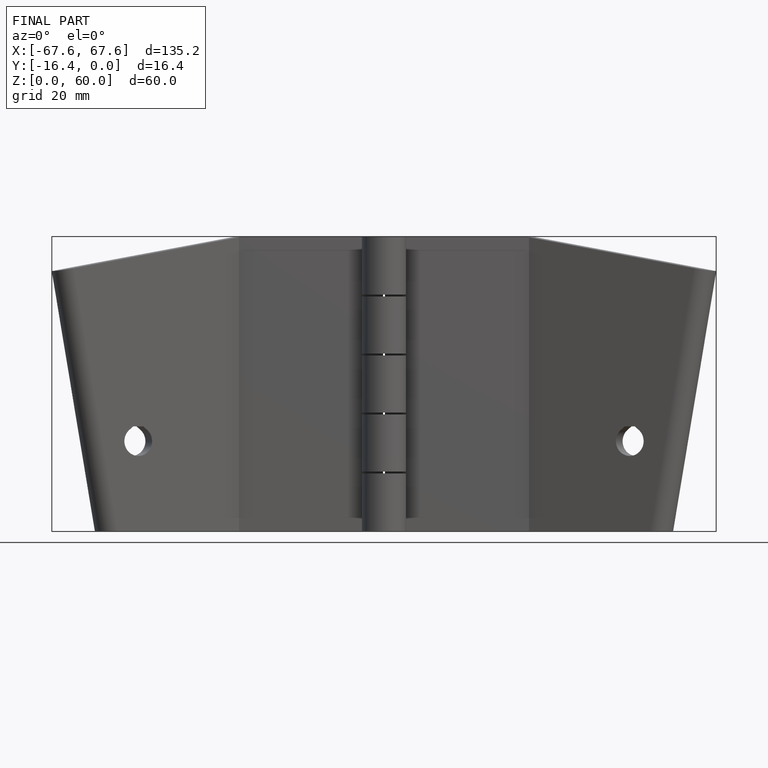
[diagram: finished part — front view with bounding-box wireframe]
